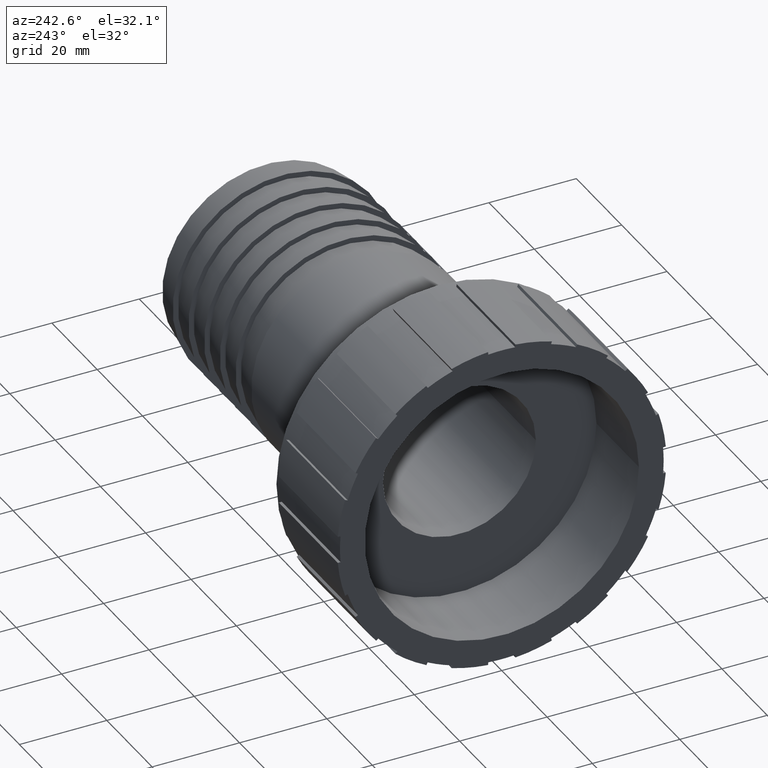
[diagram: clean part render]
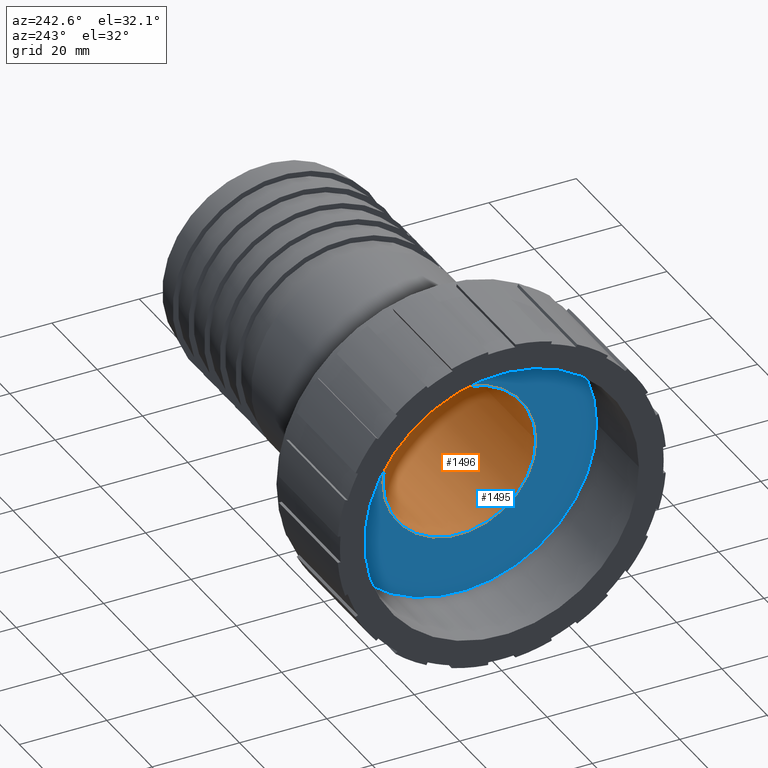
[diagram: same view with the hole feature highlighted: cylindrical wall and planar end face, labeled with their STEP entity ids]
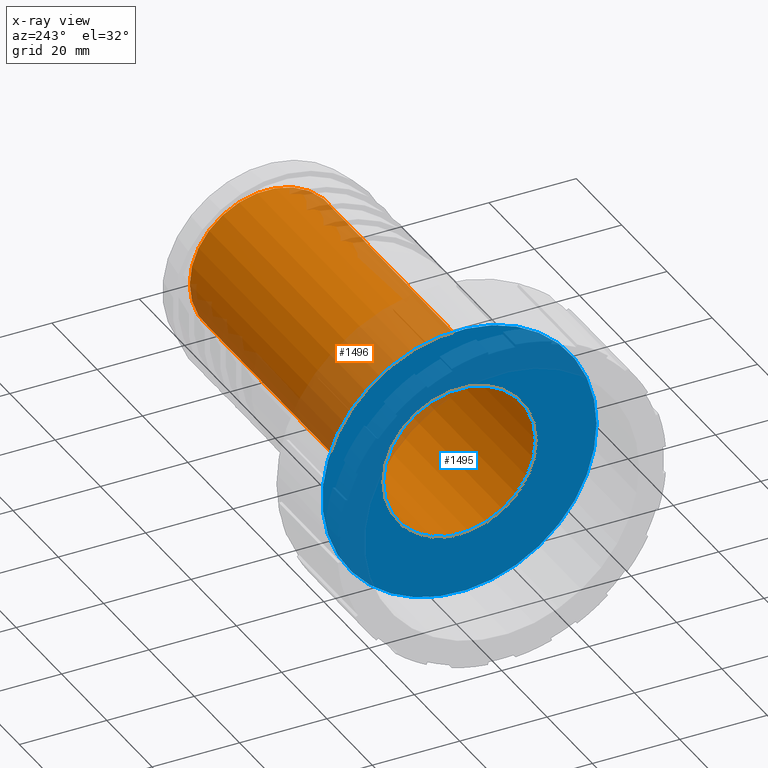
[diagram: x-ray of the same camera — body ghosted, the hole faces saturated]
A machine part, auxiliary view. The highlighted faces form one hole feature of diameter 35 mm: the cylindrical wall (entity #1496, orange) and its adjacent planar end face (entity #1495, blue) — they share a circular edge in the B-rep.
The next image is the same camera in x-ray (body ghosted, the hole faces saturated) — the bore reads through the body.
Wall:
#40=CYLINDRICAL_SURFACE('',#1652,17.5);
#48=FACE_BOUND('',#306,.T.);
#131=CIRCLE('',#1651,17.5);
#132=CIRCLE('',#1653,17.5);
#215=FACE_OUTER_BOUND('',#305,.T.);
#305=EDGE_LOOP('',(#1341));
#306=EDGE_LOOP('',(#1342));
#722=VERTEX_POINT('',#2544);
#723=VERTEX_POINT('',#2547);
#933=EDGE_CURVE('',#722,#722,#131,.T.);
#934=EDGE_CURVE('',#723,#723,#132,.T.);
#1341=ORIENTED_EDGE('',*,*,#933,.T.);
#1342=ORIENTED_EDGE('',*,*,#934,.F.);
#1496=ADVANCED_FACE('',(#215,#48),#40,.F.);
#1651=AXIS2_PLACEMENT_3D('',#2545,#2087,#2088);
#1652=AXIS2_PLACEMENT_3D('',#2546,#2089,#2090);
#1653=AXIS2_PLACEMENT_3D('',#2548,#2091,#2092);
#2087=DIRECTION('center_axis',(-1.,0.,0.));
#2088=DIRECTION('ref_axis',(0.,0.,1.));
#2089=DIRECTION('center_axis',(-1.,0.,0.));
#2090=DIRECTION('ref_axis',(0.,-1.,0.));
#2091=DIRECTION('center_axis',(-1.,0.,0.));
#2092=DIRECTION('ref_axis',(0.,0.,1.));
#2544=CARTESIAN_POINT('',(18.72,-17.5,0.));
#2545=CARTESIAN_POINT('Origin',(18.72,0.,0.));
#2546=CARTESIAN_POINT('Origin',(61.36,0.,0.));
#2547=CARTESIAN_POINT('',(104.,-17.5,0.));
#2548=CARTESIAN_POINT('Origin',(104.,0.,0.));
End face:
#47=FACE_BOUND('',#304,.T.);
#130=CIRCLE('',#1649,31.376);
#131=CIRCLE('',#1651,17.5);
#214=FACE_OUTER_BOUND('',#303,.T.);
#303=EDGE_LOOP('',(#1339));
#304=EDGE_LOOP('',(#1340));
#721=VERTEX_POINT('',#2541);
#722=VERTEX_POINT('',#2544);
#932=EDGE_CURVE('',#721,#721,#130,.T.);
#933=EDGE_CURVE('',#722,#722,#131,.T.);
#1339=ORIENTED_EDGE('',*,*,#932,.T.);
#1340=ORIENTED_EDGE('',*,*,#933,.F.);
#1419=PLANE('',#1650);
#1495=ADVANCED_FACE('',(#214,#47),#1419,.T.);
#1649=AXIS2_PLACEMENT_3D('',#2542,#2083,#2084);
#1650=AXIS2_PLACEMENT_3D('',#2543,#2085,#2086);
#1651=AXIS2_PLACEMENT_3D('',#2545,#2087,#2088);
#2083=DIRECTION('center_axis',(-1.,0.,0.));
#2084=DIRECTION('ref_axis',(0.,0.,1.));
#2085=DIRECTION('center_axis',(-1.,0.,0.));
#2086=DIRECTION('ref_axis',(0.,0.,1.));
#2087=DIRECTION('center_axis',(-1.,0.,0.));
#2088=DIRECTION('ref_axis',(0.,0.,1.));
#2541=CARTESIAN_POINT('',(18.72,-31.376,0.));
#2542=CARTESIAN_POINT('Origin',(18.72,0.,0.));
#2543=CARTESIAN_POINT('Origin',(18.72,-17.5,0.));
#2544=CARTESIAN_POINT('',(18.72,-17.5,0.));
#2545=CARTESIAN_POINT('Origin',(18.72,0.,0.));